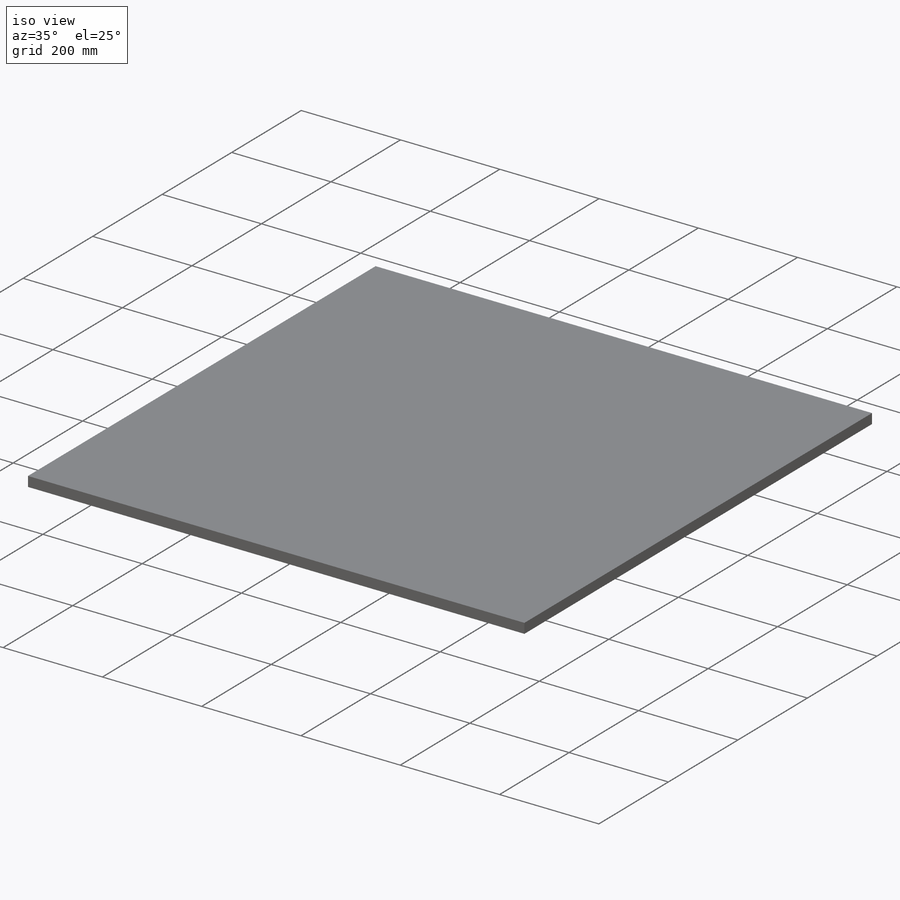
[diagram: iso view]
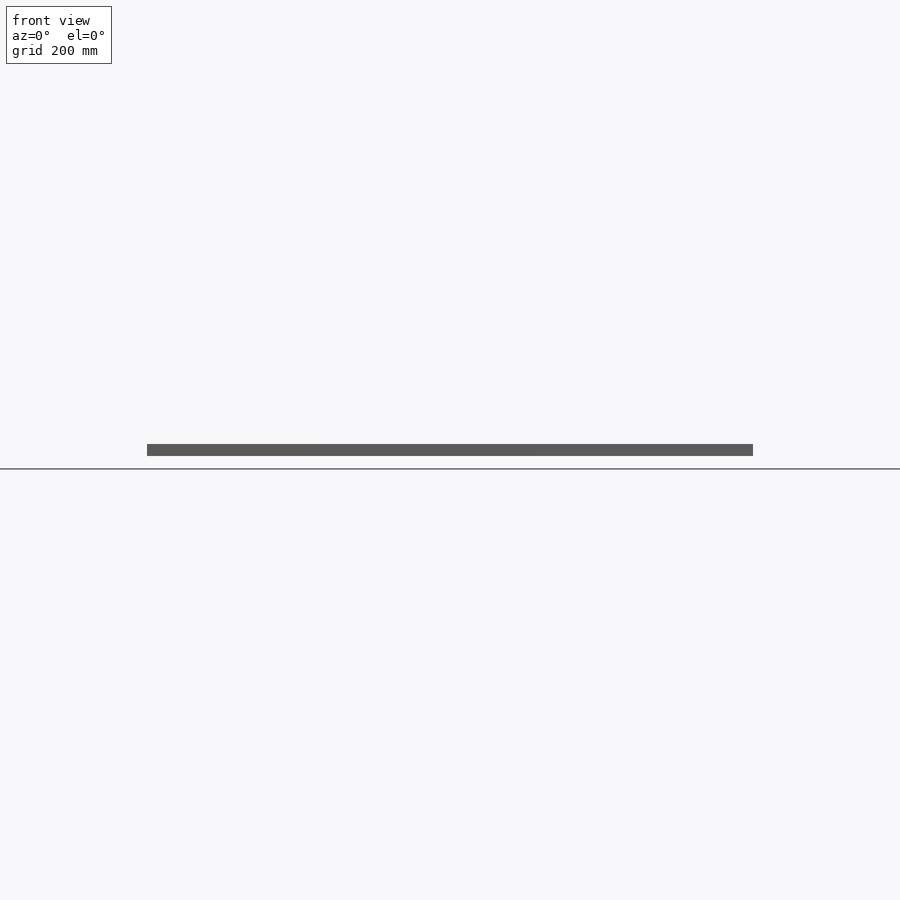
[diagram: front view]
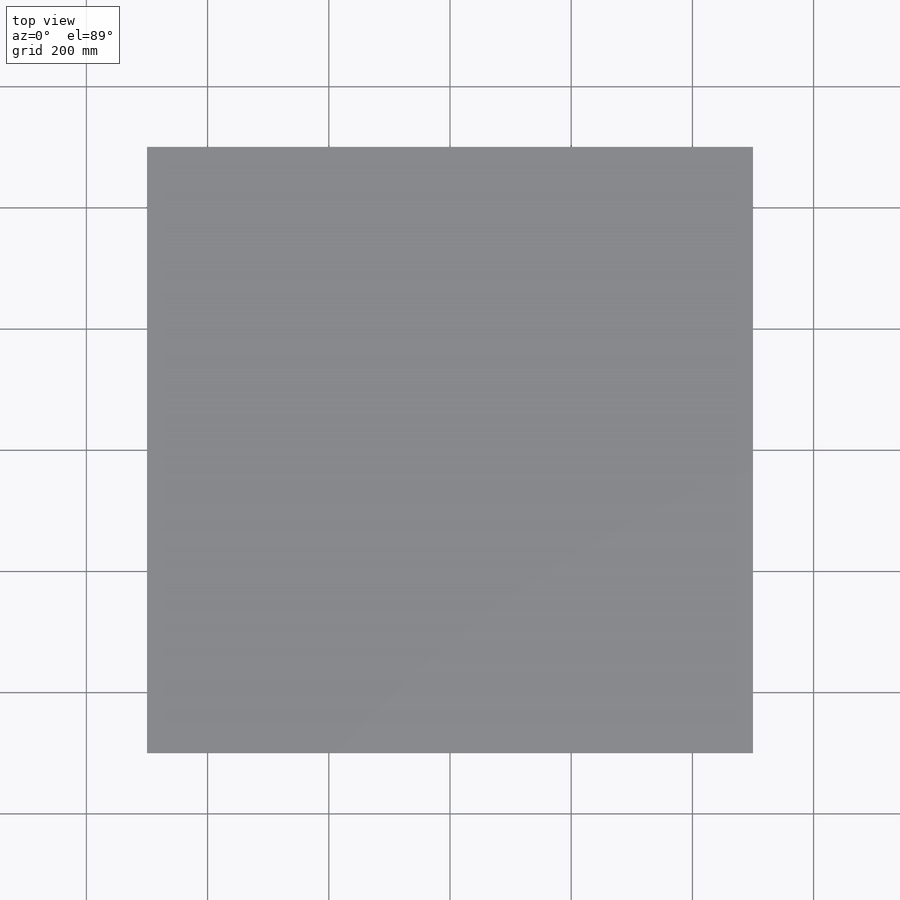
[diagram: top view]
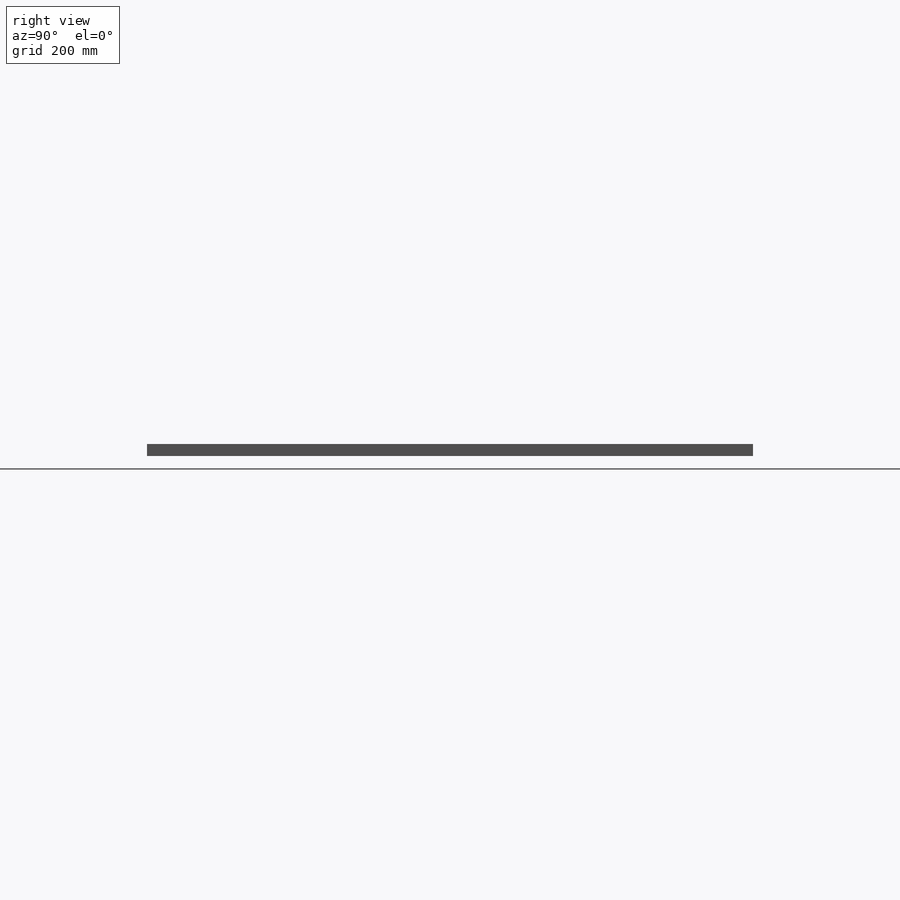
[diagram: right view]
SOLIDWORKS PART (.sldprt)
format: sldprt  version: not decoded by parser v0  size: 285,696 bytes
history: native  units: mm
features: sketch x4, plane x3, material x1, extrude x1, cut_extrude x1, sweep x1 (+8 scaffold rows collapsed)
feature tree (19):
  scaffold x8  (default folders/planes/origin — collapsed)
  material  "Material <nicht festgelegt>"
  plane  "Vorne"
  plane  "Oben"
  plane  "Rechts"
  sketch  "Skizze2"  dims[D1=1000.0mm D2=1000.0mm]
  extrude  "Aufsatz-Linear austragen1"  Depth=20mm
  sketch  "Skizze3"  dims[D1=80.0mm]
  cut_extrude  "Schnitt-Linear austragen1"  Depth=5mm
  sketch  "Skizze6"  dims[D2=20.0mm D1=50.0mm]
  sketch  "Skizze7"  dims[D4=3.0mm D1=10.0mm D2=15.0mm D3=8.0mm]
  sweep  "Schnitt-Austragung1"
decode coverage: 6 of 7 modeling features carry decoded parameters
note: suppression state not decoded; provenance and decode notes live in map.json
